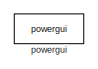
[diagram: root canvas - part 1/24, top left region]
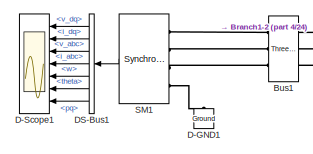
[diagram: root canvas - part 2/24, top left region]
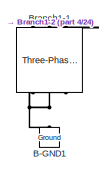
[diagram: root canvas - part 3/24, top left region]
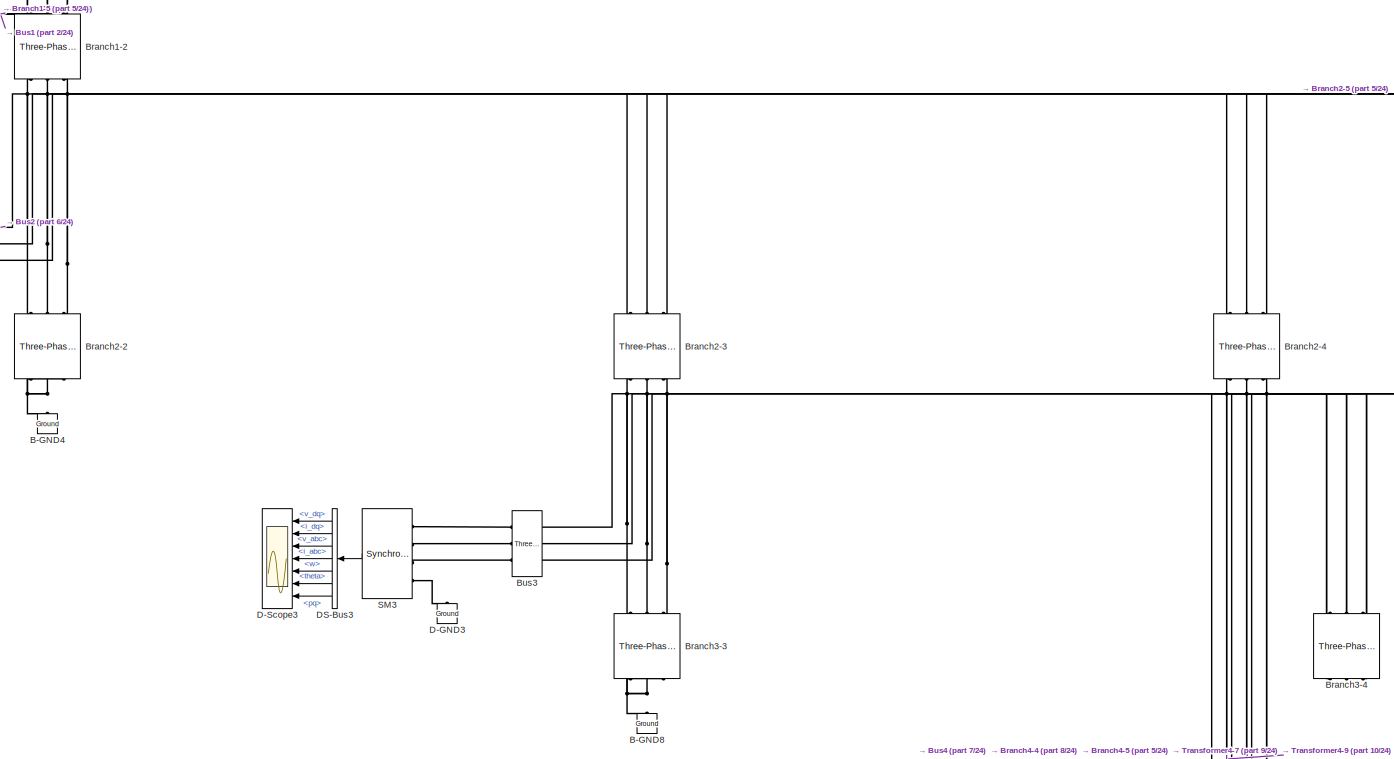
[diagram: root canvas - part 4/24, top left region]
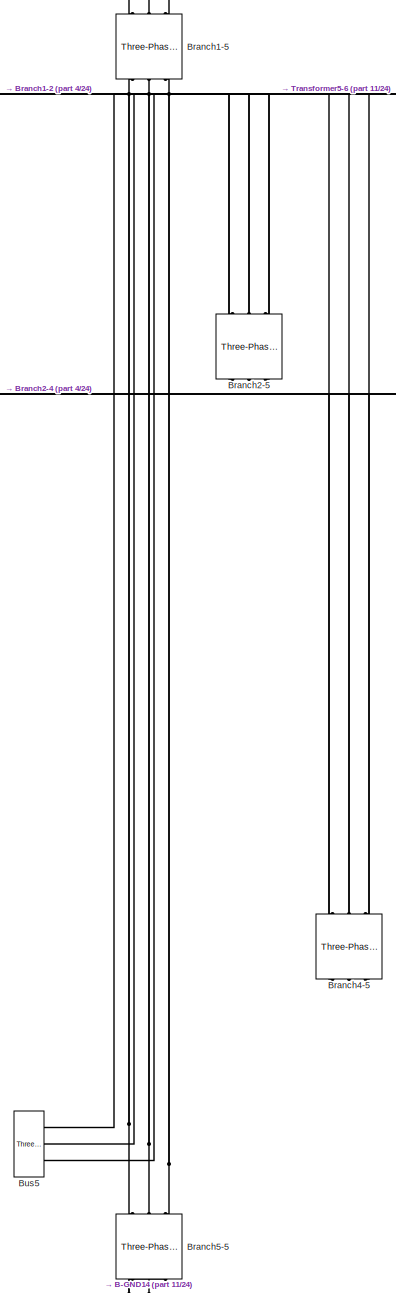
[diagram: root canvas - part 5/24, top center region]
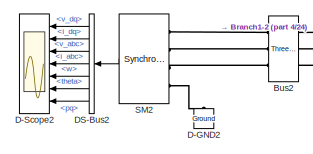
[diagram: root canvas - part 6/24, top left region]
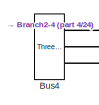
[diagram: root canvas - part 7/24, top left region]
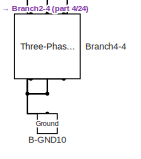
[diagram: root canvas - part 8/24, top left region]
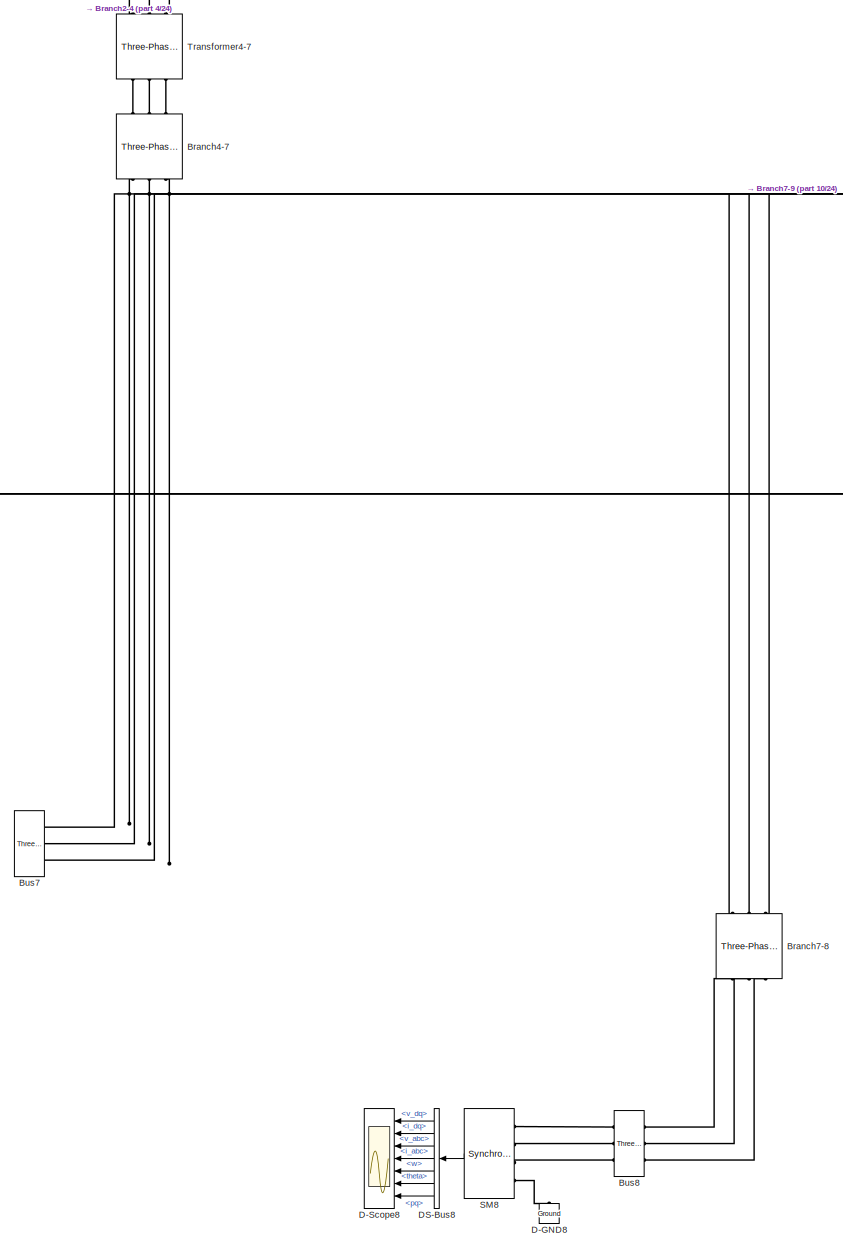
[diagram: root canvas - part 9/24, central region]
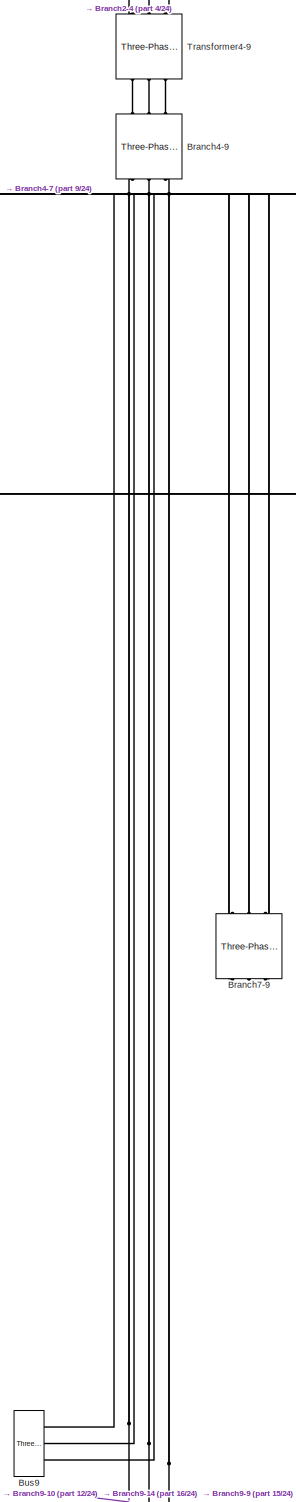
[diagram: root canvas - part 10/24, central region]
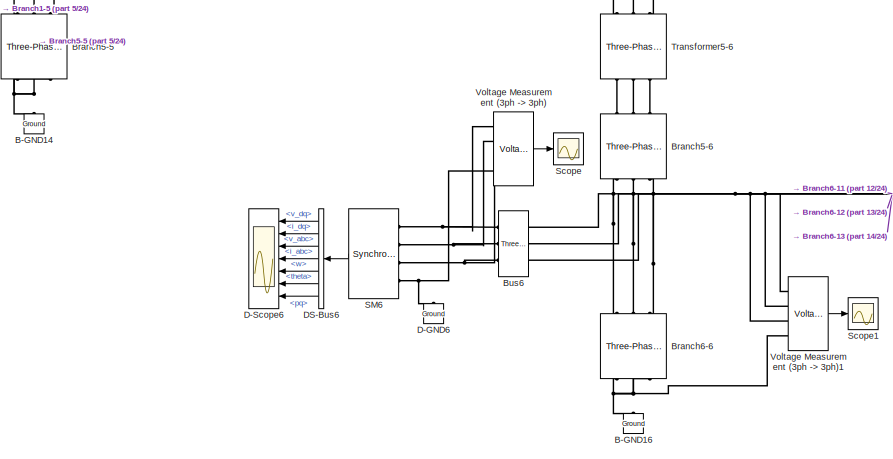
[diagram: root canvas - part 11/24, central region]
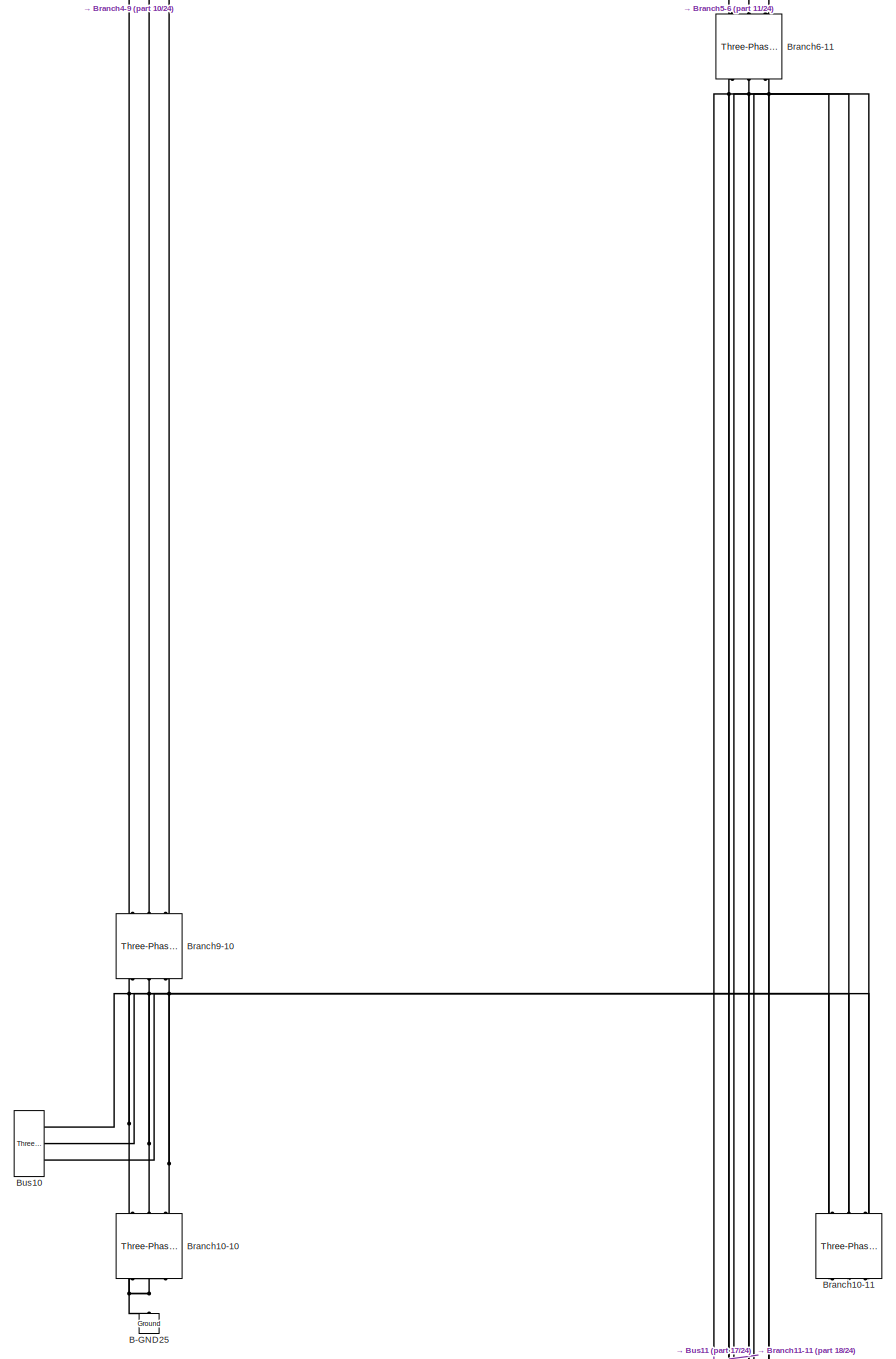
[diagram: root canvas - part 12/24, middle right region]
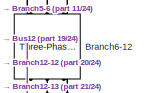
[diagram: root canvas - part 13/24, middle right region]
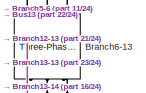
[diagram: root canvas - part 14/24, middle right region]
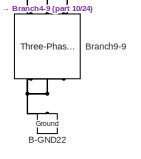
[diagram: root canvas - part 15/24, central region]
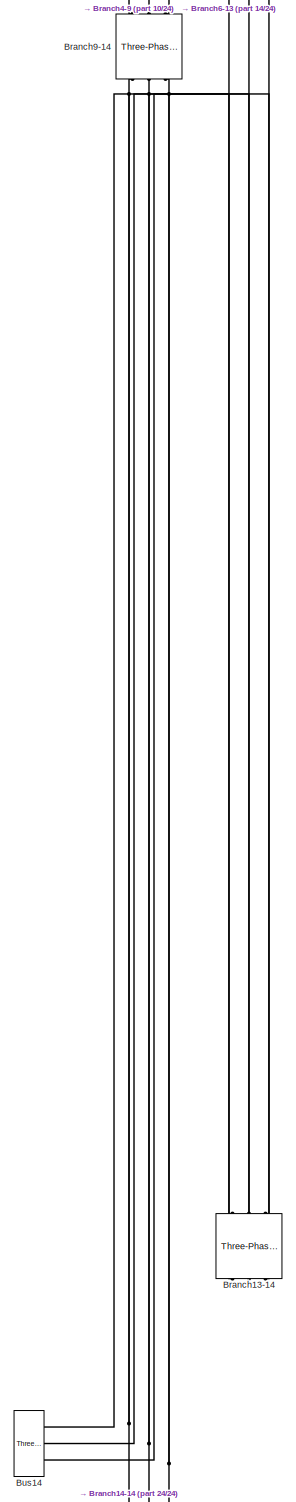
[diagram: root canvas - part 16/24, bottom right region]
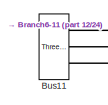
[diagram: root canvas - part 17/24, bottom right region]
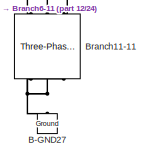
[diagram: root canvas - part 18/24, bottom right region]
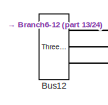
[diagram: root canvas - part 19/24, bottom right region]
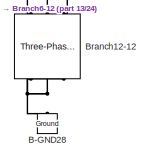
[diagram: root canvas - part 20/24, bottom right region]
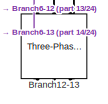
[diagram: root canvas - part 21/24, bottom right region]
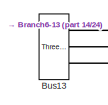
[diagram: root canvas - part 22/24, bottom right region]
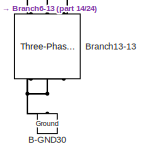
[diagram: root canvas - part 23/24, bottom right region]
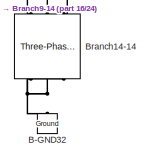
[diagram: root canvas - part 24/24, bottom right region]
MODEL slx_6c8898ea0871
KIND model
CONFIG AbsTol = auto
CONFIG EnableMultiTasking = off
CONFIG FixedStep = Ts
CONFIG MaxStep = auto
CONFIG MinStep = auto
CONFIG RelTol = 1e-3
CONFIG SampleTimeConstraint = Unconstrained
CONFIG SolverName = FixedStepAuto
CONFIG StartTime = 0
CONFIG StopTime = 5
BLOCK [Reference] B-GND1  REF=powerlib/Elements/Ground
  NameLocation = right
  Ports = [0, 0, 0, 0, 0, 1]
  SourceBlock = powerlib/Elements/Ground
  SourceProductBaseCode = PS
  SourceType = Ground
BLOCK [Reference] B-GND10  REF=powerlib/Elements/Ground
  NameLocation = right
  Ports = [0, 0, 0, 0, 0, 1]
  SourceBlock = powerlib/Elements/Ground
  SourceProductBaseCode = PS
  SourceType = Ground
BLOCK [Reference] B-GND14  REF=powerlib/Elements/Ground
  NameLocation = right
  Ports = [0, 0, 0, 0, 0, 1]
  SourceBlock = powerlib/Elements/Ground
  SourceProductBaseCode = PS
  SourceType = Ground
BLOCK [Reference] B-GND16  REF=powerlib/Elements/Ground
  NameLocation = right
  Ports = [0, 0, 0, 0, 0, 1]
  SourceBlock = powerlib/Elements/Ground
  SourceProductBaseCode = PS
  SourceType = Ground
BLOCK [Reference] B-GND22  REF=powerlib/Elements/Ground
  NameLocation = right
  Ports = [0, 0, 0, 0, 0, 1]
  SourceBlock = powerlib/Elements/Ground
  SourceProductBaseCode = PS
  SourceType = Ground
BLOCK [Reference] B-GND25  REF=powerlib/Elements/Ground
  NameLocation = right
  Ports = [0, 0, 0, 0, 0, 1]
  SourceBlock = powerlib/Elements/Ground
  SourceProductBaseCode = PS
  SourceType = Ground
BLOCK [Reference] B-GND27  REF=powerlib/Elements/Ground
  NameLocation = right
  Ports = [0, 0, 0, 0, 0, 1]
  SourceBlock = powerlib/Elements/Ground
  SourceProductBaseCode = PS
  SourceType = Ground
BLOCK [Reference] B-GND28  REF=powerlib/Elements/Ground
  NameLocation = right
  Ports = [0, 0, 0, 0, 0, 1]
  SourceBlock = powerlib/Elements/Ground
  SourceProductBaseCode = PS
  SourceType = Ground
BLOCK [Reference] B-GND30  REF=powerlib/Elements/Ground
  NameLocation = right
  Ports = [0, 0, 0, 0, 0, 1]
  SourceBlock = powerlib/Elements/Ground
  SourceProductBaseCode = PS
  SourceType = Ground
BLOCK [Reference] B-GND32  REF=powerlib/Elements/Ground
  NameLocation = right
  Ports = [0, 0, 0, 0, 0, 1]
  SourceBlock = powerlib/Elements/Ground
  SourceProductBaseCode = PS
  SourceType = Ground
BLOCK [Reference] B-GND4  REF=powerlib/Elements/Ground
  NameLocation = right
  Ports = [0, 0, 0, 0, 0, 1]
  SourceBlock = powerlib/Elements/Ground
  SourceProductBaseCode = PS
  SourceType = Ground
BLOCK [Reference] B-GND8  REF=powerlib/Elements/Ground
  NameLocation = right
  Ports = [0, 0, 0, 0, 0, 1]
  SourceBlock = powerlib/Elements/Ground
  SourceProductBaseCode = PS
  SourceType = Ground
BLOCK [Reference] Branch1-1  REF=powerlib/Elements/Three-Phase
Parallel RLC Branch
  AttributesFormatString = \n
  NameLocation = right
  Ports = [0, 0, 0, 0, 0, 3, 3]
  SourceBlock = powerlib/Elements/Three-Phase\nParallel RLC Branch
  SourceProductBaseCode = PS
  SourceType = Three-Phase Parallel RLC Branch
BLOCK [Reference] Branch1-2  REF=powerlib/Elements/Three-Phase
Series RLC Branch
  AttributesFormatString = \n
  NameLocation = right
  Ports = [0, 0, 0, 0, 0, 3, 3]
  SourceBlock = powerlib/Elements/Three-Phase\nSeries RLC Branch
  SourceProductBaseCode = PS
  SourceType = Three-Phase Series RLC Branch
BLOCK [Reference] Branch1-5  REF=powerlib/Elements/Three-Phase
Series RLC Branch
  AttributesFormatString = \n
  NameLocation = right
  Ports = [0, 0, 0, 0, 0, 3, 3]
  SourceBlock = powerlib/Elements/Three-Phase\nSeries RLC Branch
  SourceProductBaseCode = PS
  SourceType = Three-Phase Series RLC Branch
BLOCK [Reference] Branch10-10  REF=powerlib/Elements/Three-Phase
Parallel RLC Branch
  AttributesFormatString = \n
  NameLocation = right
  Ports = [0, 0, 0, 0, 0, 3, 3]
  SourceBlock = powerlib/Elements/Three-Phase\nParallel RLC Branch
  SourceProductBaseCode = PS
  SourceType = Three-Phase Parallel RLC Branch
BLOCK [Reference] Branch10-11  REF=powerlib/Elements/Three-Phase
Series RLC Branch
  AttributesFormatString = \n
  NameLocation = right
  Ports = [0, 0, 0, 0, 0, 3, 3]
  SourceBlock = powerlib/Elements/Three-Phase\nSeries RLC Branch
  SourceProductBaseCode = PS
  SourceType = Three-Phase Series RLC Branch
BLOCK [Reference] Branch11-11  REF=powerlib/Elements/Three-Phase
Parallel RLC Branch
  AttributesFormatString = \n
  NameLocation = right
  Ports = [0, 0, 0, 0, 0, 3, 3]
  SourceBlock = powerlib/Elements/Three-Phase\nParallel RLC Branch
  SourceProductBaseCode = PS
  SourceType = Three-Phase Parallel RLC Branch
BLOCK [Reference] Branch12-12  REF=powerlib/Elements/Three-Phase
Parallel RLC Branch
  AttributesFormatString = \n
  NameLocation = right
  Ports = [0, 0, 0, 0, 0, 3, 3]
  SourceBlock = powerlib/Elements/Three-Phase\nParallel RLC Branch
  SourceProductBaseCode = PS
  SourceType = Three-Phase Parallel RLC Branch
BLOCK [Reference] Branch12-13  REF=powerlib/Elements/Three-Phase
Series RLC Branch
  AttributesFormatString = \n
  NameLocation = right
  Ports = [0, 0, 0, 0, 0, 3, 3]
  SourceBlock = powerlib/Elements/Three-Phase\nSeries RLC Branch
  SourceProductBaseCode = PS
  SourceType = Three-Phase Series RLC Branch
BLOCK [Reference] Branch13-13  REF=powerlib/Elements/Three-Phase
Parallel RLC Branch
  AttributesFormatString = \n
  NameLocation = right
  Ports = [0, 0, 0, 0, 0, 3, 3]
  SourceBlock = powerlib/Elements/Three-Phase\nParallel RLC Branch
  SourceProductBaseCode = PS
  SourceType = Three-Phase Parallel RLC Branch
BLOCK [Reference] Branch13-14  REF=powerlib/Elements/Three-Phase
Series RLC Branch
  AttributesFormatString = \n
  NameLocation = right
  Ports = [0, 0, 0, 0, 0, 3, 3]
  SourceBlock = powerlib/Elements/Three-Phase\nSeries RLC Branch
  SourceProductBaseCode = PS
  SourceType = Three-Phase Series RLC Branch
BLOCK [Reference] Branch14-14  REF=powerlib/Elements/Three-Phase
Parallel RLC Branch
  AttributesFormatString = \n
  NameLocation = right
  Ports = [0, 0, 0, 0, 0, 3, 3]
  SourceBlock = powerlib/Elements/Three-Phase\nParallel RLC Branch
  SourceProductBaseCode = PS
  SourceType = Three-Phase Parallel RLC Branch
BLOCK [Reference] Branch2-2  REF=powerlib/Elements/Three-Phase
Parallel RLC Branch
  AttributesFormatString = \n
  NameLocation = right
  Ports = [0, 0, 0, 0, 0, 3, 3]
  SourceBlock = powerlib/Elements/Three-Phase\nParallel RLC Branch
  SourceProductBaseCode = PS
  SourceType = Three-Phase Parallel RLC Branch
BLOCK [Reference] Branch2-3  REF=powerlib/Elements/Three-Phase
Series RLC Branch
  AttributesFormatString = \n
  NameLocation = right
  Ports = [0, 0, 0, 0, 0, 3, 3]
  SourceBlock = powerlib/Elements/Three-Phase\nSeries RLC Branch
  SourceProductBaseCode = PS
  SourceType = Three-Phase Series RLC Branch
BLOCK [Reference] Branch2-4  REF=powerlib/Elements/Three-Phase
Series RLC Branch
  AttributesFormatString = \n
  NameLocation = right
  Ports = [0, 0, 0, 0, 0, 3, 3]
  SourceBlock = powerlib/Elements/Three-Phase\nSeries RLC Branch
  SourceProductBaseCode = PS
  SourceType = Three-Phase Series RLC Branch
BLOCK [Reference] Branch2-5  REF=powerlib/Elements/Three-Phase
Series RLC Branch
  AttributesFormatString = \n
  NameLocation = right
  Ports = [0, 0, 0, 0, 0, 3, 3]
  SourceBlock = powerlib/Elements/Three-Phase\nSeries RLC Branch
  SourceProductBaseCode = PS
  SourceType = Three-Phase Series RLC Branch
BLOCK [Reference] Branch3-3  REF=powerlib/Elements/Three-Phase
Parallel RLC Branch
  AttributesFormatString = \n
  NameLocation = right
  Ports = [0, 0, 0, 0, 0, 3, 3]
  SourceBlock = powerlib/Elements/Three-Phase\nParallel RLC Branch
  SourceProductBaseCode = PS
  SourceType = Three-Phase Parallel RLC Branch
BLOCK [Reference] Branch3-4  REF=powerlib/Elements/Three-Phase
Series RLC Branch
  AttributesFormatString = \n
  NameLocation = right
  Ports = [0, 0, 0, 0, 0, 3, 3]
  SourceBlock = powerlib/Elements/Three-Phase\nSeries RLC Branch
  SourceProductBaseCode = PS
  SourceType = Three-Phase Series RLC Branch
BLOCK [Reference] Branch4-4  REF=powerlib/Elements/Three-Phase
Parallel RLC Branch
  AttributesFormatString = \n
  NameLocation = right
  Ports = [0, 0, 0, 0, 0, 3, 3]
  SourceBlock = powerlib/Elements/Three-Phase\nParallel RLC Branch
  SourceProductBaseCode = PS
  SourceType = Three-Phase Parallel RLC Branch
BLOCK [Reference] Branch4-5  REF=powerlib/Elements/Three-Phase
Series RLC Branch
  AttributesFormatString = \n
  NameLocation = right
  Ports = [0, 0, 0, 0, 0, 3, 3]
  SourceBlock = powerlib/Elements/Three-Phase\nSeries RLC Branch
  SourceProductBaseCode = PS
  SourceType = Three-Phase Series RLC Branch
BLOCK [Reference] Branch4-7  REF=powerlib/Elements/Three-Phase
Series RLC Branch
  AttributesFormatString = \n
  NameLocation = right
  Ports = [0, 0, 0, 0, 0, 3, 3]
  SourceBlock = powerlib/Elements/Three-Phase\nSeries RLC Branch
  SourceProductBaseCode = PS
  SourceType = Three-Phase Series RLC Branch
BLOCK [Reference] Branch4-9  REF=powerlib/Elements/Three-Phase
Series RLC Branch
  AttributesFormatString = \n
  NameLocation = right
  Ports = [0, 0, 0, 0, 0, 3, 3]
  SourceBlock = powerlib/Elements/Three-Phase\nSeries RLC Branch
  SourceProductBaseCode = PS
  SourceType = Three-Phase Series RLC Branch
BLOCK [Reference] Branch5-5  REF=powerlib/Elements/Three-Phase
Parallel RLC Branch
  AttributesFormatString = \n
  NameLocation = right
  Ports = [0, 0, 0, 0, 0, 3, 3]
  SourceBlock = powerlib/Elements/Three-Phase\nParallel RLC Branch
  SourceProductBaseCode = PS
  SourceType = Three-Phase Parallel RLC Branch
BLOCK [Reference] Branch5-6  REF=powerlib/Elements/Three-Phase
Series RLC Branch
  AttributesFormatString = \n
  NameLocation = right
  Ports = [0, 0, 0, 0, 0, 3, 3]
  SourceBlock = powerlib/Elements/Three-Phase\nSeries RLC Branch
  SourceProductBaseCode = PS
  SourceType = Three-Phase Series RLC Branch
BLOCK [Reference] Branch6-11  REF=powerlib/Elements/Three-Phase
Series RLC Branch
  AttributesFormatString = \n
  NameLocation = right
  Ports = [0, 0, 0, 0, 0, 3, 3]
  SourceBlock = powerlib/Elements/Three-Phase\nSeries RLC Branch
  SourceProductBaseCode = PS
  SourceType = Three-Phase Series RLC Branch
BLOCK [Reference] Branch6-12  REF=powerlib/Elements/Three-Phase
Series RLC Branch
  AttributesFormatString = \n
  NameLocation = right
  Ports = [0, 0, 0, 0, 0, 3, 3]
  SourceBlock = powerlib/Elements/Three-Phase\nSeries RLC Branch
  SourceProductBaseCode = PS
  SourceType = Three-Phase Series RLC Branch
BLOCK [Reference] Branch6-13  REF=powerlib/Elements/Three-Phase
Series RLC Branch
  AttributesFormatString = \n
  NameLocation = right
  Ports = [0, 0, 0, 0, 0, 3, 3]
  SourceBlock = powerlib/Elements/Three-Phase\nSeries RLC Branch
  SourceProductBaseCode = PS
  SourceType = Three-Phase Series RLC Branch
BLOCK [Reference] Branch6-6  REF=powerlib/Elements/Three-Phase
Parallel RLC Branch
  AttributesFormatString = \n
  NameLocation = right
  Ports = [0, 0, 0, 0, 0, 3, 3]
  SourceBlock = powerlib/Elements/Three-Phase\nParallel RLC Branch
  SourceProductBaseCode = PS
  SourceType = Three-Phase Parallel RLC Branch
BLOCK [Reference] Branch7-8  REF=powerlib/Elements/Three-Phase
Series RLC Branch
  AttributesFormatString = \n
  NameLocation = right
  Ports = [0, 0, 0, 0, 0, 3, 3]
  SourceBlock = powerlib/Elements/Three-Phase\nSeries RLC Branch
  SourceProductBaseCode = PS
  SourceType = Three-Phase Series RLC Branch
BLOCK [Reference] Branch7-9  REF=powerlib/Elements/Three-Phase
Series RLC Branch
  AttributesFormatString = \n
  NameLocation = right
  Ports = [0, 0, 0, 0, 0, 3, 3]
  SourceBlock = powerlib/Elements/Three-Phase\nSeries RLC Branch
  SourceProductBaseCode = PS
  SourceType = Three-Phase Series RLC Branch
BLOCK [Reference] Branch9-10  REF=powerlib/Elements/Three-Phase
Series RLC Branch
  AttributesFormatString = \n
  NameLocation = right
  Ports = [0, 0, 0, 0, 0, 3, 3]
  SourceBlock = powerlib/Elements/Three-Phase\nSeries RLC Branch
  SourceProductBaseCode = PS
  SourceType = Three-Phase Series RLC Branch
BLOCK [Reference] Branch9-14  REF=powerlib/Elements/Three-Phase
Series RLC Branch
  AttributesFormatString = \n
  NameLocation = right
  Ports = [0, 0, 0, 0, 0, 3, 3]
  SourceBlock = powerlib/Elements/Three-Phase\nSeries RLC Branch
  SourceProductBaseCode = PS
  SourceType = Three-Phase Series RLC Branch
BLOCK [Reference] Branch9-9  REF=powerlib/Elements/Three-Phase
Parallel RLC Branch
  AttributesFormatString = \n
  NameLocation = right
  Ports = [0, 0, 0, 0, 0, 3, 3]
  SourceBlock = powerlib/Elements/Three-Phase\nParallel RLC Branch
  SourceProductBaseCode = PS
  SourceType = Three-Phase Parallel RLC Branch
BLOCK [Reference] Bus1  REF=SimplusGT/Three-Phase Bus
  Ports = [0, 0, 0, 0, 0, 3, 3]
  SourceBlock = SimplusGT/Three-Phase Bus
BLOCK [Reference] Bus10  REF=SimplusGT/Three-Phase Bus
  Ports = [0, 0, 0, 0, 0, 3, 3]
  SourceBlock = SimplusGT/Three-Phase Bus
BLOCK [Reference] Bus11  REF=SimplusGT/Three-Phase Bus
  Ports = [0, 0, 0, 0, 0, 3, 3]
  SourceBlock = SimplusGT/Three-Phase Bus
BLOCK [Reference] Bus12  REF=SimplusGT/Three-Phase Bus
  Ports = [0, 0, 0, 0, 0, 3, 3]
  SourceBlock = SimplusGT/Three-Phase Bus
BLOCK [Reference] Bus13  REF=SimplusGT/Three-Phase Bus
  Ports = [0, 0, 0, 0, 0, 3, 3]
  SourceBlock = SimplusGT/Three-Phase Bus
BLOCK [Reference] Bus14  REF=SimplusGT/Three-Phase Bus
  Ports = [0, 0, 0, 0, 0, 3, 3]
  SourceBlock = SimplusGT/Three-Phase Bus
BLOCK [Reference] Bus2  REF=SimplusGT/Three-Phase Bus
  Ports = [0, 0, 0, 0, 0, 3, 3]
  SourceBlock = SimplusGT/Three-Phase Bus
BLOCK [Reference] Bus3  REF=SimplusGT/Three-Phase Bus
  Ports = [0, 0, 0, 0, 0, 3, 3]
  SourceBlock = SimplusGT/Three-Phase Bus
BLOCK [Reference] Bus4  REF=SimplusGT/Three-Phase Bus
  Ports = [0, 0, 0, 0, 0, 3, 3]
  SourceBlock = SimplusGT/Three-Phase Bus
BLOCK [Reference] Bus5  REF=SimplusGT/Three-Phase Bus
  Ports = [0, 0, 0, 0, 0, 3, 3]
  SourceBlock = SimplusGT/Three-Phase Bus
BLOCK [Reference] Bus6  REF=SimplusGT/Three-Phase Bus
  Ports = [0, 0, 0, 0, 0, 3, 3]
  SourceBlock = SimplusGT/Three-Phase Bus
BLOCK [Reference] Bus7  REF=SimplusGT/Three-Phase Bus
  Ports = [0, 0, 0, 0, 0, 3, 3]
  SourceBlock = SimplusGT/Three-Phase Bus
BLOCK [Reference] Bus8  REF=SimplusGT/Three-Phase Bus
  Ports = [0, 0, 0, 0, 0, 3, 3]
  SourceBlock = SimplusGT/Three-Phase Bus
BLOCK [Reference] Bus9  REF=SimplusGT/Three-Phase Bus
  Ports = [0, 0, 0, 0, 0, 3, 3]
  SourceBlock = SimplusGT/Three-Phase Bus
BLOCK [Reference] D-GND1  REF=powerlib/Elements/Ground
  NameLocation = right
  Ports = [0, 0, 0, 0, 0, 1]
  SourceBlock = powerlib/Elements/Ground
  SourceProductBaseCode = PS
  SourceType = Ground
BLOCK [Reference] D-GND2  REF=powerlib/Elements/Ground
  NameLocation = right
  Ports = [0, 0, 0, 0, 0, 1]
  SourceBlock = powerlib/Elements/Ground
  SourceProductBaseCode = PS
  SourceType = Ground
BLOCK [Reference] D-GND3  REF=powerlib/Elements/Ground
  NameLocation = right
  Ports = [0, 0, 0, 0, 0, 1]
  SourceBlock = powerlib/Elements/Ground
  SourceProductBaseCode = PS
  SourceType = Ground
BLOCK [Reference] D-GND6  REF=powerlib/Elements/Ground
  NameLocation = right
  Ports = [0, 0, 0, 0, 0, 1]
  SourceBlock = powerlib/Elements/Ground
  SourceProductBaseCode = PS
  SourceType = Ground
BLOCK [Reference] D-GND8  REF=powerlib/Elements/Ground
  NameLocation = right
  Ports = [0, 0, 0, 0, 0, 1]
  SourceBlock = powerlib/Elements/Ground
  SourceProductBaseCode = PS
  SourceType = Ground
BLOCK [Scope] D-Scope1
  Floating = off
  NumInputPorts = 7
  Ports = [7]
  ScopeSpecificationString = Simulink.scopes.TimeScopeBlockCfg('CurrentConfiguration', extmgr.ConfigurationSet(extmgr.Configuration('Core','General UI',true),extmgr.Configuration('Core','Source UI',true),extmgr.Configuration('Sources','WiredSimulink',true),extmgr.Configuration('Visuals','Time Domain',true,'SerializedDisplays',{struct('MinYLimReal','-10','MaxYLimReal','10','YLabelReal','','MinYLimMag','0','MaxYLimMag','10','Le...<+4963ch>  <repeated x4 — deduplicated; at blocks: D-Scope1, D-Scope2, D-Scope3, D-Scope8>
BLOCK [Scope] D-Scope2
  Floating = off
  NumInputPorts = 7
  Ports = [7]
BLOCK [Scope] D-Scope3
  Floating = off
  NumInputPorts = 7
  Ports = [7]
BLOCK [Scope] D-Scope6
  Floating = off
  NumInputPorts = 7
  Ports = [7]
  ScopeSpecificationString = Simulink.scopes.TimeScopeBlockCfg('CurrentConfiguration', extmgr.ConfigurationSet(extmgr.Configuration('Core','General UI',true),extmgr.Configuration('Core','Source UI',true),extmgr.Configuration('Sources','WiredSimulink',true),extmgr.Configuration('Visuals','Time Domain',true,'SerializedDisplays',{struct('MinYLimReal','-0.22757','MaxYLimReal','1.41702','YLabelReal','','MinYLimMag','0.00000','MaxY...<+5571ch>
BLOCK [Scope] D-Scope8
  Floating = off
  NumInputPorts = 7
  Ports = [7]
BLOCK [BusSelector] DS-Bus1
  OutputSignals = v_dq,i_dq,v_abc,i_abc,w,theta,pq
  Ports = [1, 7]
BLOCK [BusSelector] DS-Bus2
  OutputSignals = v_dq,i_dq,v_abc,i_abc,w,theta,pq
  Ports = [1, 7]
BLOCK [BusSelector] DS-Bus3
  OutputSignals = v_dq,i_dq,v_abc,i_abc,w,theta,pq
  Ports = [1, 7]
BLOCK [BusSelector] DS-Bus6
  OutputSignals = v_dq,i_dq,v_abc,i_abc,w,theta,pq
  Ports = [1, 7]
BLOCK [BusSelector] DS-Bus8
  OutputSignals = v_dq,i_dq,v_abc,i_abc,w,theta,pq
  Ports = [1, 7]
BLOCK [Reference] SM1  REF=SimplusGT/SynchronousMachineFull_Cyp_SMAVRPSSGOV (dq-Frame System Object)
  Ports = [0, 1, 0, 0, 0, 4]
  SourceBlock = SimplusGT/SynchronousMachineFull_Cyp_SMAVRPSSGOV (dq-Frame System Object)
BLOCK [Reference] SM2  REF=SimplusGT/SynchronousMachineFull_Cyp_SMAVRPSSGOV (dq-Frame System Object)
  Ports = [0, 1, 0, 0, 0, 4]
  SourceBlock = SimplusGT/SynchronousMachineFull_Cyp_SMAVRPSSGOV (dq-Frame System Object)
BLOCK [Reference] SM3  REF=SimplusGT/SynchronousMachineFull_Cyp_SMAVR (dq-Frame System Object)
  Ports = [0, 1, 0, 0, 0, 4]
  SourceBlock = SimplusGT/SynchronousMachineFull_Cyp_SMAVR (dq-Frame System Object)
BLOCK [Reference] SM6  REF=SimplusGT/SynchronousMachineFull_Cyp_SMAVR (dq-Frame System Object)
  Ports = [0, 1, 0, 0, 0, 4]
  SourceBlock = SimplusGT/SynchronousMachineFull_Cyp_SMAVR (dq-Frame System Object)
BLOCK [Reference] SM8  REF=SimplusGT/SynchronousMachineFull_Cyp_SMAVR (dq-Frame System Object)
  Ports = [0, 1, 0, 0, 0, 4]
  SourceBlock = SimplusGT/SynchronousMachineFull_Cyp_SMAVR (dq-Frame System Object)
BLOCK [Scope] Scope
  Floating = off
  NumInputPorts = 1
  Ports = [1]
  ScopeSpecificationString = Simulink.scopes.TimeScopeBlockCfg('CurrentConfiguration', extmgr.ConfigurationSet(extmgr.Configuration('Core','General UI',true),extmgr.Configuration('Core','Source UI',true),extmgr.Configuration('Sources','WiredSimulink',true,'DataLoggingVariableName','ScopeData1'),extmgr.Configuration('Visuals','Time Domain',true,'SerializedDisplays',{struct('MinYLimReal','-1.12239','MaxYLimReal','1.01169','YLab...<+1564ch>
BLOCK [Scope] Scope1
  Floating = off
  NumInputPorts = 1
  Ports = [1]
  ScopeSpecificationString = Simulink.scopes.TimeScopeBlockCfg('CurrentConfiguration', extmgr.ConfigurationSet(extmgr.Configuration('Core','General UI',true),extmgr.Configuration('Core','Source UI',true),extmgr.Configuration('Sources','WiredSimulink',true,'DataLoggingVariableName','ScopeData2'),extmgr.Configuration('Visuals','Time Domain',true,'SerializedDisplays',{struct('MinYLimReal','-1.08143','MaxYLimReal','0.93652','YLab...<+1569ch>
BLOCK [Reference] Transformer4-7  REF=powerlib/Elements/Three-Phase
Transformer
(Two Windings)
  NameLocation = right
  Ports = [0, 0, 0, 0, 0, 3, 3]
  SourceBlock = powerlib/Elements/Three-Phase\nTransformer\n(Two Windings)
  SourceProductBaseCode = PS
  SourceType = Three-Phase Transformer (Two Windings)
BLOCK [Reference] Transformer4-9  REF=powerlib/Elements/Three-Phase
Transformer
(Two Windings)
  NameLocation = right
  Ports = [0, 0, 0, 0, 0, 3, 3]
  SourceBlock = powerlib/Elements/Three-Phase\nTransformer\n(Two Windings)
  SourceProductBaseCode = PS
  SourceType = Three-Phase Transformer (Two Windings)
BLOCK [Reference] Transformer5-6  REF=powerlib/Elements/Three-Phase
Transformer
(Two Windings)
  NameLocation = right
  Ports = [0, 0, 0, 0, 0, 3, 3]
  SourceBlock = powerlib/Elements/Three-Phase\nTransformer\n(Two Windings)
  SourceProductBaseCode = PS
  SourceType = Three-Phase Transformer (Two Windings)
BLOCK [Reference] Voltage Measurement (3ph -> 3ph)  REF=SimplusGT/Voltage
Measurement
(3ph -> 3ph)
  Ports = [0, 1, 0, 0, 0, 4]
  SourceBlock = SimplusGT/Voltage\nMeasurement\n(3ph -> 3ph)
BLOCK [Reference] Voltage Measurement (3ph -> 3ph)1  REF=SimplusGT/Voltage
Measurement
(3ph -> 3ph)
  Ports = [0, 1, 0, 0, 0, 4]
  SourceBlock = SimplusGT/Voltage\nMeasurement\n(3ph -> 3ph)
BLOCK [Reference] powergui  REF=powerlib/powergui
  Ports = []
  Priority = 1
  SourceBlock = powerlib/powergui
  SourceProductBaseCode = PS
  SourceType = PSB option menu block
LINE DS-Bus1:1 -> D-Scope1:1
LINE DS-Bus1:2 -> D-Scope1:2
LINE DS-Bus1:3 -> D-Scope1:3
LINE DS-Bus1:4 -> D-Scope1:4
LINE DS-Bus1:5 -> D-Scope1:5
LINE DS-Bus1:6 -> D-Scope1:6
LINE DS-Bus1:7 -> D-Scope1:7
LINE DS-Bus2:1 -> D-Scope2:1
LINE DS-Bus2:2 -> D-Scope2:2
LINE DS-Bus2:3 -> D-Scope2:3
LINE DS-Bus2:4 -> D-Scope2:4
LINE DS-Bus2:5 -> D-Scope2:5
LINE DS-Bus2:6 -> D-Scope2:6
LINE DS-Bus2:7 -> D-Scope2:7
LINE DS-Bus3:1 -> D-Scope3:1
LINE DS-Bus3:2 -> D-Scope3:2
LINE DS-Bus3:3 -> D-Scope3:3
LINE DS-Bus3:4 -> D-Scope3:4
LINE DS-Bus3:5 -> D-Scope3:5
LINE DS-Bus3:6 -> D-Scope3:6
LINE DS-Bus3:7 -> D-Scope3:7
LINE DS-Bus6:1 -> D-Scope6:1
LINE DS-Bus6:2 -> D-Scope6:2
LINE DS-Bus6:3 -> D-Scope6:3
LINE DS-Bus6:4 -> D-Scope6:4
LINE DS-Bus6:5 -> D-Scope6:5
LINE DS-Bus6:6 -> D-Scope6:6
LINE DS-Bus6:7 -> D-Scope6:7
LINE DS-Bus8:1 -> D-Scope8:1
LINE DS-Bus8:2 -> D-Scope8:2
LINE DS-Bus8:3 -> D-Scope8:3
LINE DS-Bus8:4 -> D-Scope8:4
LINE DS-Bus8:5 -> D-Scope8:5
LINE DS-Bus8:6 -> D-Scope8:6
LINE DS-Bus8:7 -> D-Scope8:7
LINE SM1:1 -> DS-Bus1:1
LINE SM2:1 -> DS-Bus2:1
LINE SM3:1 -> DS-Bus3:1
LINE SM6:1 -> DS-Bus6:1
LINE SM8:1 -> DS-Bus8:1
LINE Voltage Measurement (3ph -> 3ph)1:1 -> Scope1:1
LINE Voltage Measurement (3ph -> 3ph):1 -> Scope:1
PNET net1: B-GND10:LConn1 -- Branch4-4:RConn1 -- Branch4-4:RConn2 -- Branch4-4:RConn3
PNET net2: B-GND14:LConn1 -- Branch5-5:RConn1 -- Branch5-5:RConn2 -- Branch5-5:RConn3
PNET net3: B-GND16:LConn1 -- Branch6-6:RConn1 -- Branch6-6:RConn2 -- Branch6-6:RConn3 -- Voltage Measurement (3ph -> 3ph)1:LConn4
PNET net4: B-GND1:LConn1 -- Branch1-1:RConn1 -- Branch1-1:RConn2 -- Branch1-1:RConn3
PNET net5: B-GND22:LConn1 -- Branch9-9:RConn1 -- Branch9-9:RConn2 -- Branch9-9:RConn3
PNET net6: B-GND25:LConn1 -- Branch10-10:RConn1 -- Branch10-10:RConn2 -- Branch10-10:RConn3
PNET net7: B-GND27:LConn1 -- Branch11-11:RConn1 -- Branch11-11:RConn2 -- Branch11-11:RConn3
PNET net8: B-GND28:LConn1 -- Branch12-12:RConn1 -- Branch12-12:RConn2 -- Branch12-12:RConn3
PNET net9: B-GND30:LConn1 -- Branch13-13:RConn1 -- Branch13-13:RConn2 -- Branch13-13:RConn3
PNET net10: B-GND32:LConn1 -- Branch14-14:RConn1 -- Branch14-14:RConn2 -- Branch14-14:RConn3
PNET net11: B-GND4:LConn1 -- Branch2-2:RConn1 -- Branch2-2:RConn2 -- Branch2-2:RConn3
PNET net12: B-GND8:LConn1 -- Branch3-3:RConn1 -- Branch3-3:RConn2 -- Branch3-3:RConn3
PNET net13: Branch1-1:LConn1 -- Branch1-2:LConn1 -- Branch1-5:LConn1 -- Bus1:RConn1
PNET net14: Branch1-1:LConn2 -- Branch1-2:LConn2 -- Branch1-5:LConn2 -- Bus1:RConn2
PNET net15: Branch1-1:LConn3 -- Branch1-2:LConn3 -- Branch1-5:LConn3 -- Bus1:RConn3
PNET net16: Branch1-2:RConn1 -- Branch2-2:LConn1 -- Branch2-3:LConn1 -- Branch2-4:LConn1 -- Branch2-5:LConn1 -- Bus2:RConn1
PNET net17: Branch1-2:RConn2 -- Branch2-2:LConn2 -- Branch2-3:LConn2 -- Branch2-4:LConn2 -- Branch2-5:LConn2 -- Bus2:RConn2
PNET net18: Branch1-2:RConn3 -- Branch2-2:LConn3 -- Branch2-3:LConn3 -- Branch2-4:LConn3 -- Branch2-5:LConn3 -- Bus2:RConn3
PNET net19: Branch1-5:RConn1 -- Branch2-5:RConn1 -- Branch4-5:RConn1 -- Branch5-5:LConn1 -- Bus5:RConn1 -- Transformer5-6:LConn1
PNET net20: Branch1-5:RConn2 -- Branch2-5:RConn2 -- Branch4-5:RConn2 -- Branch5-5:LConn2 -- Bus5:RConn2 -- Transformer5-6:LConn2
PNET net21: Branch1-5:RConn3 -- Branch2-5:RConn3 -- Branch4-5:RConn3 -- Branch5-5:LConn3 -- Bus5:RConn3 -- Transformer5-6:LConn3
PNET net22: Branch10-10:LConn1 -- Branch10-11:LConn1 -- Branch9-10:RConn1 -- Bus10:RConn1
PNET net23: Branch10-10:LConn2 -- Branch10-11:LConn2 -- Branch9-10:RConn2 -- Bus10:RConn2
PNET net24: Branch10-10:LConn3 -- Branch10-11:LConn3 -- Branch9-10:RConn3 -- Bus10:RConn3
PNET net25: Branch10-11:RConn1 -- Branch11-11:LConn1 -- Branch6-11:RConn1 -- Bus11:RConn1
PNET net26: Branch10-11:RConn2 -- Branch11-11:LConn2 -- Branch6-11:RConn2 -- Bus11:RConn2
PNET net27: Branch10-11:RConn3 -- Branch11-11:LConn3 -- Branch6-11:RConn3 -- Bus11:RConn3
PNET net28: Branch12-12:LConn1 -- Branch12-13:LConn1 -- Branch6-12:RConn1 -- Bus12:RConn1
PNET net29: Branch12-12:LConn2 -- Branch12-13:LConn2 -- Branch6-12:RConn2 -- Bus12:RConn2
PNET net30: Branch12-12:LConn3 -- Branch12-13:LConn3 -- Branch6-12:RConn3 -- Bus12:RConn3
PNET net31: Branch12-13:RConn1 -- Branch13-13:LConn1 -- Branch13-14:LConn1 -- Branch6-13:RConn1 -- Bus13:RConn1
PNET net32: Branch12-13:RConn2 -- Branch13-13:LConn2 -- Branch13-14:LConn2 -- Branch6-13:RConn2 -- Bus13:RConn2
PNET net33: Branch12-13:RConn3 -- Branch13-13:LConn3 -- Branch13-14:LConn3 -- Branch6-13:RConn3 -- Bus13:RConn3
PNET net34: Branch13-14:RConn1 -- Branch14-14:LConn1 -- Branch9-14:RConn1 -- Bus14:RConn1
PNET net35: Branch13-14:RConn2 -- Branch14-14:LConn2 -- Branch9-14:RConn2 -- Bus14:RConn2
PNET net36: Branch13-14:RConn3 -- Branch14-14:LConn3 -- Branch9-14:RConn3 -- Bus14:RConn3
PNET net37: Branch2-3:RConn1 -- Branch3-3:LConn1 -- Branch3-4:LConn1 -- Bus3:RConn1
PNET net38: Branch2-3:RConn2 -- Branch3-3:LConn2 -- Branch3-4:LConn2 -- Bus3:RConn2
PNET net39: Branch2-3:RConn3 -- Branch3-3:LConn3 -- Branch3-4:LConn3 -- Bus3:RConn3
PNET net40: Branch2-4:RConn1 -- Branch3-4:RConn1 -- Branch4-4:LConn1 -- Branch4-5:LConn1 -- Bus4:RConn1 -- Transformer4-7:LConn1 -- Transformer4-9:LConn1
PNET net41: Branch2-4:RConn2 -- Branch3-4:RConn2 -- Branch4-4:LConn2 -- Branch4-5:LConn2 -- Bus4:RConn2 -- Transformer4-7:LConn2 -- Transformer4-9:LConn2
PNET net42: Branch2-4:RConn3 -- Branch3-4:RConn3 -- Branch4-4:LConn3 -- Branch4-5:LConn3 -- Bus4:RConn3 -- Transformer4-7:LConn3 -- Transformer4-9:LConn3
PLINE Branch4-7:LConn1 -- Transformer4-7:RConn1
PLINE Branch4-7:LConn2 -- Transformer4-7:RConn2
PLINE Branch4-7:LConn3 -- Transformer4-7:RConn3
PNET net43: Branch4-7:RConn1 -- Branch7-8:LConn1 -- Branch7-9:LConn1 -- Bus7:RConn1
PNET net44: Branch4-7:RConn2 -- Branch7-8:LConn2 -- Branch7-9:LConn2 -- Bus7:RConn2
PNET net45: Branch4-7:RConn3 -- Branch7-8:LConn3 -- Branch7-9:LConn3 -- Bus7:RConn3
PLINE Branch4-9:LConn1 -- Transformer4-9:RConn1
PLINE Branch4-9:LConn2 -- Transformer4-9:RConn2
PLINE Branch4-9:LConn3 -- Transformer4-9:RConn3
PNET net46: Branch4-9:RConn1 -- Branch7-9:RConn1 -- Branch9-10:LConn1 -- Branch9-14:LConn1 -- Branch9-9:LConn1 -- Bus9:RConn1
PNET net47: Branch4-9:RConn2 -- Branch7-9:RConn2 -- Branch9-10:LConn2 -- Branch9-14:LConn2 -- Branch9-9:LConn2 -- Bus9:RConn2
PNET net48: Branch4-9:RConn3 -- Branch7-9:RConn3 -- Branch9-10:LConn3 -- Branch9-14:LConn3 -- Branch9-9:LConn3 -- Bus9:RConn3
PLINE Branch5-6:LConn1 -- Transformer5-6:RConn1
PLINE Branch5-6:LConn2 -- Transformer5-6:RConn2
PLINE Branch5-6:LConn3 -- Transformer5-6:RConn3
PNET net49: Branch5-6:RConn1 -- Branch6-11:LConn1 -- Branch6-12:LConn1 -- Branch6-13:LConn1 -- Branch6-6:LConn1 -- Bus6:RConn1 -- Voltage Measurement (3ph -> 3ph)1:LConn1
PNET net50: Branch5-6:RConn2 -- Branch6-11:LConn2 -- Branch6-12:LConn2 -- Branch6-13:LConn2 -- Branch6-6:LConn2 -- Bus6:RConn2 -- Voltage Measurement (3ph -> 3ph)1:LConn2
PNET net51: Branch5-6:RConn3 -- Branch6-11:LConn3 -- Branch6-12:LConn3 -- Branch6-13:LConn3 -- Branch6-6:LConn3 -- Bus6:RConn3 -- Voltage Measurement (3ph -> 3ph)1:LConn3
PLINE Branch7-8:RConn1 -- Bus8:RConn1
PLINE Branch7-8:RConn2 -- Bus8:RConn2
PLINE Branch7-8:RConn3 -- Bus8:RConn3
PLINE Bus1:LConn1 -- SM1:LConn1
PLINE Bus1:LConn2 -- SM1:LConn2
PLINE Bus1:LConn3 -- SM1:LConn3
PLINE Bus2:LConn1 -- SM2:LConn1
PLINE Bus2:LConn2 -- SM2:LConn2
PLINE Bus2:LConn3 -- SM2:LConn3
PLINE Bus3:LConn1 -- SM3:LConn1
PLINE Bus3:LConn2 -- SM3:LConn2
PLINE Bus3:LConn3 -- SM3:LConn3
PNET net52: Bus6:LConn1 -- SM6:LConn1 -- Voltage Measurement (3ph -> 3ph):LConn1
PNET net53: Bus6:LConn2 -- SM6:LConn2 -- Voltage Measurement (3ph -> 3ph):LConn2
PNET net54: Bus6:LConn3 -- SM6:LConn3 -- Voltage Measurement (3ph -> 3ph):LConn3
PLINE Bus8:LConn1 -- SM8:LConn1
PLINE Bus8:LConn2 -- SM8:LConn2
PLINE Bus8:LConn3 -- SM8:LConn3
PLINE D-GND1:LConn1 -- SM1:LConn4
PLINE D-GND2:LConn1 -- SM2:LConn4
PLINE D-GND3:LConn1 -- SM3:LConn4
PNET net55: D-GND6:LConn1 -- SM6:LConn4 -- Voltage Measurement (3ph -> 3ph):LConn4
PLINE D-GND8:LConn1 -- SM8:LConn4
note: PNET lines group multi-terminal physical nets as a canonical sorted terminal list (undirected conserving connections); 2-terminal nets keep the pairwise PLINE form
